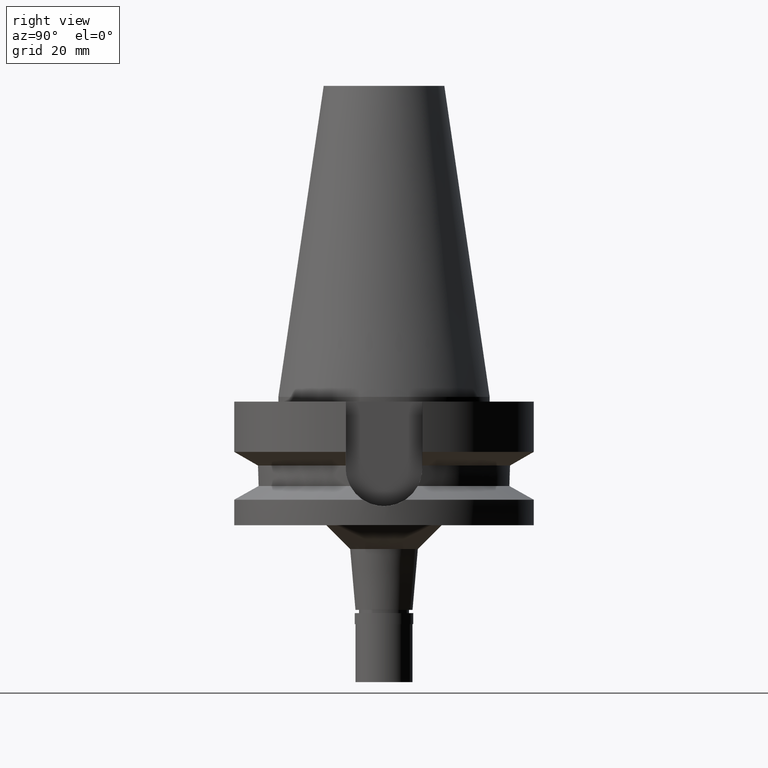
[diagram: clean part render]
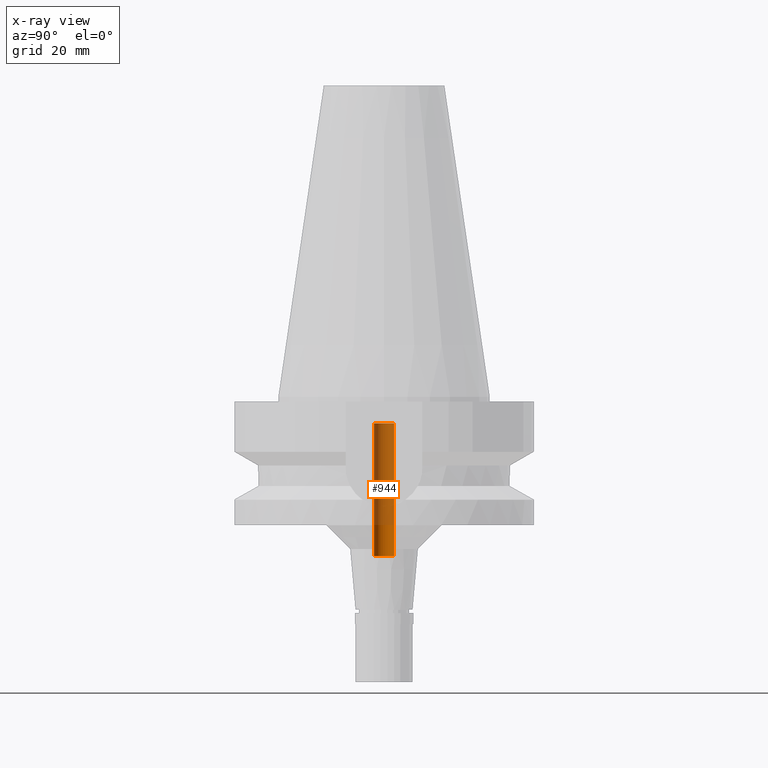
[diagram: x-ray — body ghosted, one internal face saturated and labeled with its STEP entity id]
A machine part, right view, then the same camera in x-ray: the body is ghosted and one INTERNAL B-rep face — a face not visible from any outside direction — is saturated and labeled: STEP entity #944.
In plain terms, the highlighted cylindrical surface (edge-blend (fillet) strip) has radius 2.1 mm, axis along (0, 0, -1).
Its self-contained STEP definition (entity closure, byte-faithful):
#17 = ORIENTED_EDGE ( 'NONE', *, *, #1935, .F. ) ;
#161 = CARTESIAN_POINT ( 'NONE',  ( 0.0000000000000000000, 2.100000000000000089, -5.599999999999999645 ) ) ;
#263 = CARTESIAN_POINT ( 'NONE',  ( 0.0000000000000000000, -2.100000000000000089, -5.599999999999999645 ) ) ;
#376 = AXIS2_PLACEMENT_3D ( 'NONE', #2900, #1244, #796 ) ;
#433 = EDGE_LOOP ( 'NONE', ( #2588, #17, #1661, #530 ) ) ;
#473 = EDGE_CURVE ( 'NONE', #924, #2034, #1802, .T. ) ;
#516 = CARTESIAN_POINT ( 'NONE',  ( 0.0000000000000000000, 2.100000000000000089, -33.50000000000000000 ) ) ;
#530 = ORIENTED_EDGE ( 'NONE', *, *, #2389, .T. ) ;
#562 = VERTEX_POINT ( 'NONE', #161 ) ;
#564 = AXIS2_PLACEMENT_3D ( 'NONE', #2315, #683, #2285 ) ;
#567 = FACE_OUTER_BOUND ( 'NONE', #433, .T. ) ;
#683 = DIRECTION ( 'NONE',  ( 0.0000000000000000000, 0.0000000000000000000, -1.000000000000000000 ) ) ;
#796 = DIRECTION ( 'NONE',  ( 0.0000000000000000000, -1.000000000000000000, 0.0000000000000000000 ) ) ;
#924 = VERTEX_POINT ( 'NONE', #2634 ) ;
#929 = CARTESIAN_POINT ( 'NONE',  ( 0.0000000000000000000, -2.100000000000000089, -33.50000000000000000 ) ) ;
#944 = ADVANCED_FACE ( 'NONE', ( #567 ), #1484, .F. ) ;
#1190 = VECTOR ( 'NONE', #2203, 1000.000000000000000 ) ;
#1244 = DIRECTION ( 'NONE',  ( 0.0000000000000000000, 0.0000000000000000000, -1.000000000000000000 ) ) ;
#1251 = VECTOR ( 'NONE', #1835, 1000.000000000000000 ) ;
#1295 = CIRCLE ( 'NONE', #2320, 2.100000000000000089 ) ;
#1349 = EDGE_CURVE ( 'NONE', #562, #1815, #1295, .T. ) ;
#1484 = CYLINDRICAL_SURFACE ( 'NONE', #564, 2.100000000000000089 ) ;
#1594 = DIRECTION ( 'NONE',  ( 0.0000000000000000000, 1.000000000000000000, 0.0000000000000000000 ) ) ;
#1661 = ORIENTED_EDGE ( 'NONE', *, *, #473, .T. ) ;
#1802 = CIRCLE ( 'NONE', #376, 2.100000000000000089 ) ;
#1815 = VERTEX_POINT ( 'NONE', #263 ) ;
#1835 = DIRECTION ( 'NONE',  ( 0.0000000000000000000, 0.0000000000000000000, 1.000000000000000000 ) ) ;
#1935 = EDGE_CURVE ( 'NONE', #924, #1815, #2597, .T. ) ;
#2034 = VERTEX_POINT ( 'NONE', #2151 ) ;
#2151 = CARTESIAN_POINT ( 'NONE',  ( 0.0000000000000000000, 2.100000000000000089, -33.50000000000000000 ) ) ;
#2203 = DIRECTION ( 'NONE',  ( 0.0000000000000000000, 0.0000000000000000000, 1.000000000000000000 ) ) ;
#2285 = DIRECTION ( 'NONE',  ( 0.0000000000000000000, -1.000000000000000000, 0.0000000000000000000 ) ) ;
#2291 = DIRECTION ( 'NONE',  ( 0.0000000000000000000, 0.0000000000000000000, 1.000000000000000000 ) ) ;
#2315 = CARTESIAN_POINT ( 'NONE',  ( 0.0000000000000000000, 2.099901866497999886E-14, 71.46999999999999886 ) ) ;
#2320 = AXIS2_PLACEMENT_3D ( 'NONE', #2746, #2291, #1594 ) ;
#2389 = EDGE_CURVE ( 'NONE', #2034, #562, #2595, .T. ) ;
#2588 = ORIENTED_EDGE ( 'NONE', *, *, #1349, .T. ) ;
#2595 = LINE ( 'NONE', #516, #1190 ) ;
#2597 = LINE ( 'NONE', #929, #1251 ) ;
#2634 = CARTESIAN_POINT ( 'NONE',  ( 0.0000000000000000000, -2.100000000000000089, -33.50000000000000000 ) ) ;
#2746 = CARTESIAN_POINT ( 'NONE',  ( 0.0000000000000000000, 2.099901866497999886E-14, -5.599999999999999645 ) ) ;
#2900 = CARTESIAN_POINT ( 'NONE',  ( 0.0000000000000000000, 2.099901866497999886E-14, -33.50000000000000000 ) ) ;